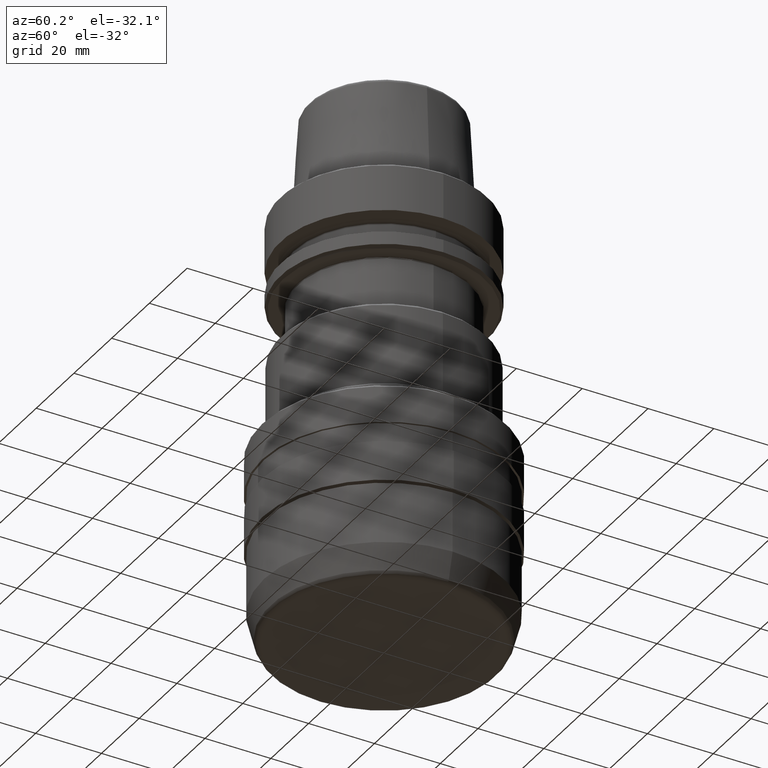
[diagram: clean part render]
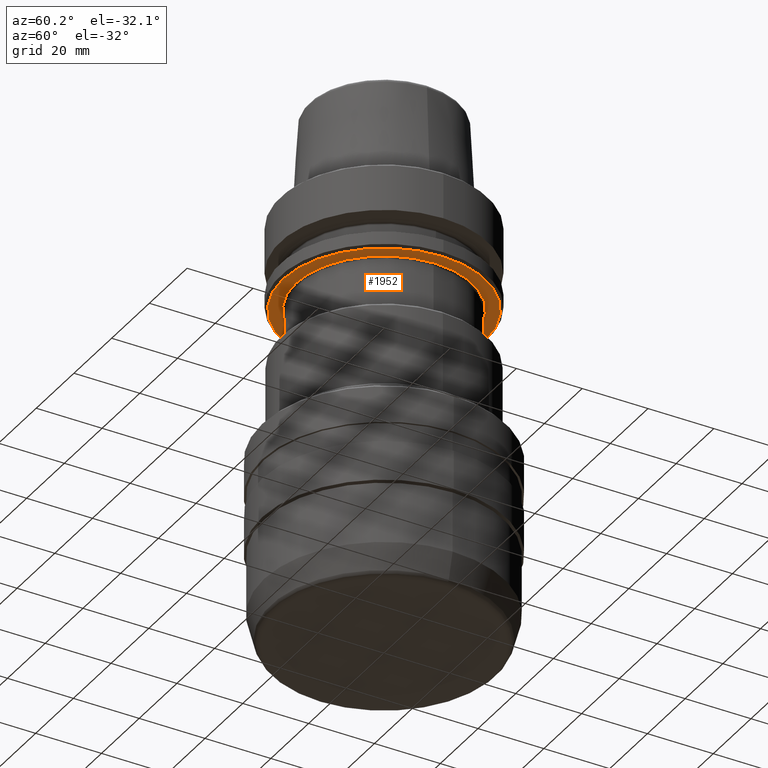
[diagram: same view with one face highlighted and labeled with its STEP entity id]
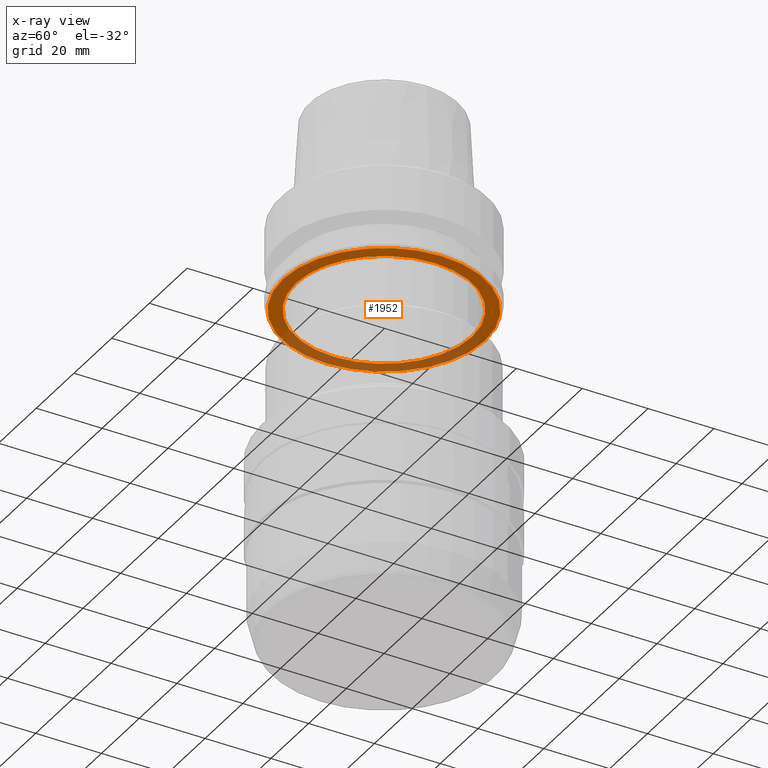
[diagram: x-ray of the same camera — body ghosted, the highlighted face saturated]
A machine part, auxiliary view. The second image highlights one B-rep face of the part: STEP entity #1952.
The next image is the same camera in x-ray: the body ghosted, the highlighted face saturated — about 37% of this face is hidden behind the body in this view.
In plain terms, the highlighted planar face has unit normal (0, 0, -1).
Its self-contained STEP definition (entity closure, byte-faithful):
#9 = CARTESIAN_POINT ( 'NONE',  ( -26.74999999999982900, 3.275930187719149000E-015, -26.00000000000041900 ) ) ;
#86 = AXIS2_PLACEMENT_3D ( 'NONE', #1607, #1010, #218 ) ;
#136 = EDGE_CURVE ( 'NONE', #787, #1825, #1963, .T. ) ;
#174 = CARTESIAN_POINT ( 'NONE',  ( 30.69999999999995000, 0.0000000000000000000, -26.00000000000025900 ) ) ;
#200 = DIRECTION ( 'NONE',  ( 1.000000000000000000, 0.0000000000000000000, 0.0000000000000000000 ) ) ;
#218 = DIRECTION ( 'NONE',  ( 1.000000000000000000, 0.0000000000000000000, 0.0000000000000000000 ) ) ;
#265 = FACE_OUTER_BOUND ( 'NONE', #1239, .T. ) ;
#291 = CIRCLE ( 'NONE', #1393, 30.69999999999995000 ) ;
#294 = VERTEX_POINT ( 'NONE', #174 ) ;
#297 = CARTESIAN_POINT ( 'NONE',  ( 0.0000000000000000000, 0.0000000000000000000, -26.00000000000025900 ) ) ;
#359 = AXIS2_PLACEMENT_3D ( 'NONE', #1459, #555, #1357 ) ;
#452 = CIRCLE ( 'NONE', #1745, 26.74999999999982900 ) ;
#490 = ORIENTED_EDGE ( 'NONE', *, *, #950, .F. ) ;
#555 = DIRECTION ( 'NONE',  ( -0.0000000000000000000, -0.0000000000000000000, 1.000000000000000000 ) ) ;
#661 = AXIS2_PLACEMENT_3D ( 'NONE', #1599, #1584, #1926 ) ;
#676 = VERTEX_POINT ( 'NONE', #1260 ) ;
#787 = VERTEX_POINT ( 'NONE', #9 ) ;
#834 = DIRECTION ( 'NONE',  ( 1.000000000000000000, 0.0000000000000000000, 0.0000000000000000000 ) ) ;
#882 = EDGE_CURVE ( 'NONE', #1825, #787, #452, .T. ) ;
#920 = EDGE_LOOP ( 'NONE', ( #1849, #1693 ) ) ;
#950 = EDGE_CURVE ( 'NONE', #294, #676, #2017, .T. ) ;
#994 = DIRECTION ( 'NONE',  ( -0.0000000000000000000, -0.0000000000000000000, 1.000000000000000000 ) ) ;
#1010 = DIRECTION ( 'NONE',  ( -0.0000000000000000000, -0.0000000000000000000, 1.000000000000000000 ) ) ;
#1022 = CARTESIAN_POINT ( 'NONE',  ( 26.74999999999982900, 0.0000000000000000000, -26.00000000000041900 ) ) ;
#1224 = CARTESIAN_POINT ( 'NONE',  ( 0.0000000000000000000, 0.0000000000000000000, -26.00000000000025900 ) ) ;
#1239 = EDGE_LOOP ( 'NONE', ( #490, #1773 ) ) ;
#1260 = CARTESIAN_POINT ( 'NONE',  ( -30.69999999999995000, 3.808651545348256600E-015, -26.00000000000025900 ) ) ;
#1357 = DIRECTION ( 'NONE',  ( 1.000000000000000000, 0.0000000000000000000, 0.0000000000000000000 ) ) ;
#1393 = AXIS2_PLACEMENT_3D ( 'NONE', #297, #994, #200 ) ;
#1459 = CARTESIAN_POINT ( 'NONE',  ( 0.0000000000000000000, 0.0000000000000000000, -26.00000000000025900 ) ) ;
#1584 = DIRECTION ( 'NONE',  ( 0.0000000000000000000, 0.0000000000000000000, -1.000000000000000000 ) ) ;
#1599 = CARTESIAN_POINT ( 'NONE',  ( 0.0000000000000000000, 0.0000000000000000000, -26.00000000000024500 ) ) ;
#1607 = CARTESIAN_POINT ( 'NONE',  ( 0.0000000000000000000, 0.0000000000000000000, -26.00000000000025900 ) ) ;
#1653 = EDGE_CURVE ( 'NONE', #676, #294, #291, .T. ) ;
#1693 = ORIENTED_EDGE ( 'NONE', *, *, #136, .T. ) ;
#1745 = AXIS2_PLACEMENT_3D ( 'NONE', #1224, #1884, #834 ) ;
#1773 = ORIENTED_EDGE ( 'NONE', *, *, #1653, .F. ) ;
#1825 = VERTEX_POINT ( 'NONE', #1022 ) ;
#1849 = ORIENTED_EDGE ( 'NONE', *, *, #882, .T. ) ;
#1884 = DIRECTION ( 'NONE',  ( -0.0000000000000000000, -0.0000000000000000000, 1.000000000000000000 ) ) ;
#1902 = PLANE ( 'NONE',  #661 ) ;
#1919 = FACE_BOUND ( 'NONE', #920, .T. ) ;
#1926 = DIRECTION ( 'NONE',  ( -1.000000000000000000, 0.0000000000000000000, -0.0000000000000000000 ) ) ;
#1952 = ADVANCED_FACE ( 'NONE', ( #1919, #265 ), #1902, .T. ) ;
#1963 = CIRCLE ( 'NONE', #359, 26.74999999999982900 ) ;
#2017 = CIRCLE ( 'NONE', #86, 30.69999999999995000 ) ;